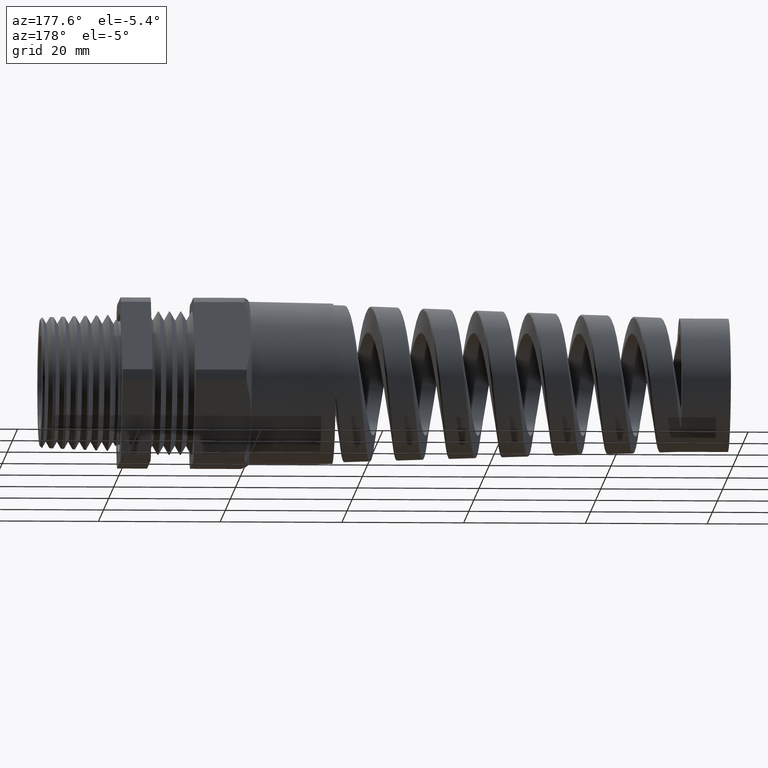
[diagram: clean part render]
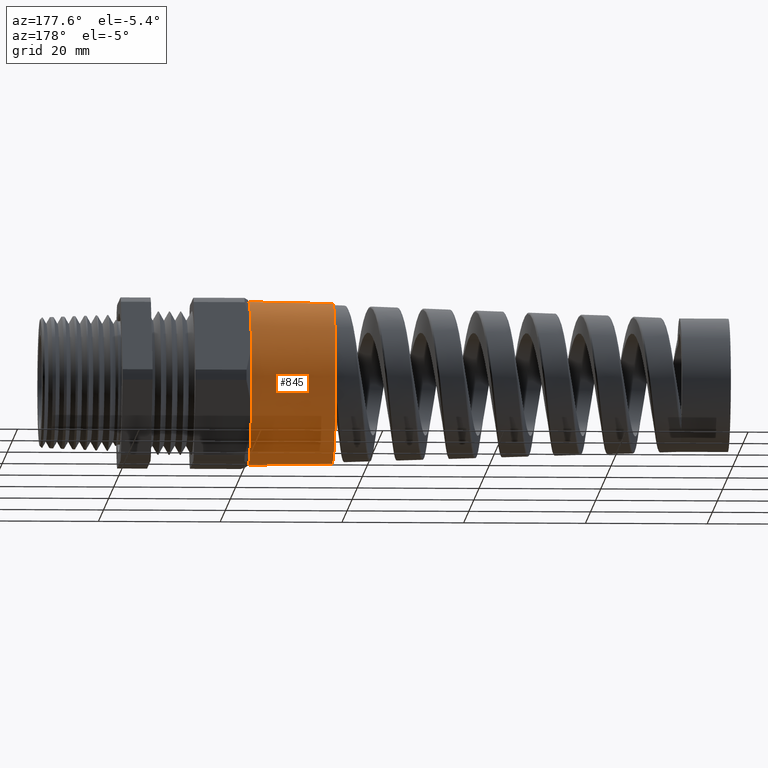
[diagram: same view with one face highlighted and labeled with its STEP entity id]
A machine part, auxiliary view. The second image highlights one B-rep face of the part: STEP entity #845.
In plain terms, the highlighted conical surface has half-angle 1 deg.
Its self-contained STEP definition (entity closure, byte-faithful):
#396 = VERTEX_POINT ( 'NONE', #2847 ) ;
#407 = VERTEX_POINT ( 'NONE', #2873 ) ;
#637 = EDGE_CURVE ( 'NONE', #396, #407, #3293, .T. ) ;
#644 = EDGE_CURVE ( 'NONE', #1260, #396, #3286, .T. ) ;
#657 = EDGE_CURVE ( 'NONE', #407, #1251, #3329, .T. ) ;
#824 = ORIENTED_EDGE ( 'NONE', *, *, #852, .F. ) ;
#825 = ORIENTED_EDGE ( 'NONE', *, *, #1262, .T. ) ;
#826 = ORIENTED_EDGE ( 'NONE', *, *, #644, .T. ) ;
#827 = ORIENTED_EDGE ( 'NONE', *, *, #637, .T. ) ;
#828 = ORIENTED_EDGE ( 'NONE', *, *, #657, .T. ) ;
#845 = ADVANCED_FACE ( 'NONE', ( #3577 ), #3576, .T. ) ;
#846 = EDGE_LOOP ( 'NONE', ( #847, #824, #825, #826, #827, #828 ) ) ;
#847 = ORIENTED_EDGE ( 'NONE', *, *, #1224, .F. ) ;
#852 = EDGE_CURVE ( 'NONE', #1222, #1221, #3606, .T. ) ;
#1221 = VERTEX_POINT ( 'NONE', #11710 ) ;
#1222 = VERTEX_POINT ( 'NONE', #11709 ) ;
#1224 = EDGE_CURVE ( 'NONE', #1221, #1251, #11708, .T. ) ;
#1251 = VERTEX_POINT ( 'NONE', #11903 ) ;
#1260 = VERTEX_POINT ( 'NONE', #11885 ) ;
#1262 = EDGE_CURVE ( 'NONE', #1222, #1260, #11884, .T. ) ;
#2847 = CARTESIAN_POINT ( 'NONE',  ( -0.8375000000000000200, 0.4589934640057524200, 0.2650000000000000700 ) ) ;
#2873 = CARTESIAN_POINT ( 'NONE',  ( -0.8375000000000000200, 0.4589934640057525300, -0.2649999999999998500 ) ) ;
#3269 = CARTESIAN_POINT ( 'NONE',  ( -0.8375000000000000200, 0.0000000000000000000, 0.0000000000000000000 ) ) ;
#3278 = DIRECTION ( 'NONE',  ( 0.0000000000000000000, 0.0000000000000000000, 1.000000000000000000 ) ) ;
#3279 = DIRECTION ( 'NONE',  ( -1.000000000000000000, 0.0000000000000000000, 0.0000000000000000000 ) ) ;
#3280 = CARTESIAN_POINT ( 'NONE',  ( -0.8375000000000000200, 0.0000000000000000000, 0.0000000000000000000 ) ) ;
#3281 = AXIS2_PLACEMENT_3D ( 'NONE', #3280, #3279, #3278 ) ;
#3286 = CIRCLE ( 'NONE', #3281, 0.5299999999999999200 ) ;
#3289 = DIRECTION ( 'NONE',  ( 0.0000000000000000000, 0.0000000000000000000, 1.000000000000000000 ) ) ;
#3290 = DIRECTION ( 'NONE',  ( -1.000000000000000000, 0.0000000000000000000, 0.0000000000000000000 ) ) ;
#3291 = CARTESIAN_POINT ( 'NONE',  ( -0.8375000000000000200, 0.0000000000000000000, 0.0000000000000000000 ) ) ;
#3292 = AXIS2_PLACEMENT_3D ( 'NONE', #3291, #3290, #3289 ) ;
#3293 = CIRCLE ( 'NONE', #3292, 0.5299999999999999200 ) ;
#3326 = DIRECTION ( 'NONE',  ( 0.0000000000000000000, 0.0000000000000000000, 1.000000000000000000 ) ) ;
#3327 = DIRECTION ( 'NONE',  ( -1.000000000000000000, 0.0000000000000000000, 0.0000000000000000000 ) ) ;
#3328 = AXIS2_PLACEMENT_3D ( 'NONE', #3269, #3327, #3326 ) ;
#3329 = CIRCLE ( 'NONE', #3328, 0.5299999999999999200 ) ;
#3574 = CARTESIAN_POINT ( 'NONE',  ( -0.8375000000000000200, 0.0000000000000000000, 0.0000000000000000000 ) ) ;
#3576 = CONICAL_SURFACE ( 'NONE', #3622, 0.5299999999999999200, 0.01745329251994333400 ) ;
#3577 = FACE_OUTER_BOUND ( 'NONE', #846, .T. ) ;
#3602 = DIRECTION ( 'NONE',  ( 0.0000000000000000000, 0.0000000000000000000, 1.000000000000000000 ) ) ;
#3603 = DIRECTION ( 'NONE',  ( -1.000000000000000000, 0.0000000000000000000, 0.0000000000000000000 ) ) ;
#3604 = CARTESIAN_POINT ( 'NONE',  ( -1.381219999999999900, 0.0000000000000000000, 0.0000000000000000000 ) ) ;
#3605 = AXIS2_PLACEMENT_3D ( 'NONE', #3604, #3603, #3602 ) ;
#3606 = CIRCLE ( 'NONE', #3605, 0.5205093320972294900 ) ;
#3611 = DIRECTION ( 'NONE',  ( 0.0000000000000000000, 0.0000000000000000000, 1.000000000000000000 ) ) ;
#3612 = DIRECTION ( 'NONE',  ( 1.000000000000000000, 0.0000000000000000000, 0.0000000000000000000 ) ) ;
#3622 = AXIS2_PLACEMENT_3D ( 'NONE', #3574, #3612, #3611 ) ;
#11705 = DIRECTION ( 'NONE',  ( 0.9998476951563912700, -2.137303368083796300E-018, -0.01745240643728355000 ) ) ;
#11706 = VECTOR ( 'NONE', #11705, 39.37007874015748100 ) ;
#11707 = CARTESIAN_POINT ( 'NONE',  ( -0.8375000000000000200, -6.490628035480971200E-017, -0.5299999999999999200 ) ) ;
#11708 = LINE ( 'NONE', #11707, #11706 ) ;
#11709 = CARTESIAN_POINT ( 'NONE',  ( -1.381219999999999900, 0.0000000000000000000, 0.5205093320972294900 ) ) ;
#11710 = CARTESIAN_POINT ( 'NONE',  ( -1.381219999999999900, -6.432514455136479600E-017, -0.5205093320972294900 ) ) ;
#11884 = LINE ( 'NONE', #11947, #11946 ) ;
#11885 = CARTESIAN_POINT ( 'NONE',  ( -0.8375000000000000200, 0.0000000000000000000, 0.5299999999999999200 ) ) ;
#11903 = CARTESIAN_POINT ( 'NONE',  ( -0.8375000000000000200, 0.0000000000000000000, -0.5299999999999999200 ) ) ;
#11945 = DIRECTION ( 'NONE',  ( 0.9998476951563912700, 0.0000000000000000000, 0.01745240643728355000 ) ) ;
#11946 = VECTOR ( 'NONE', #11945, 39.37007874015748100 ) ;
#11947 = CARTESIAN_POINT ( 'NONE',  ( -0.8375000000000000200, 0.0000000000000000000, 0.5299999999999999200 ) ) ;